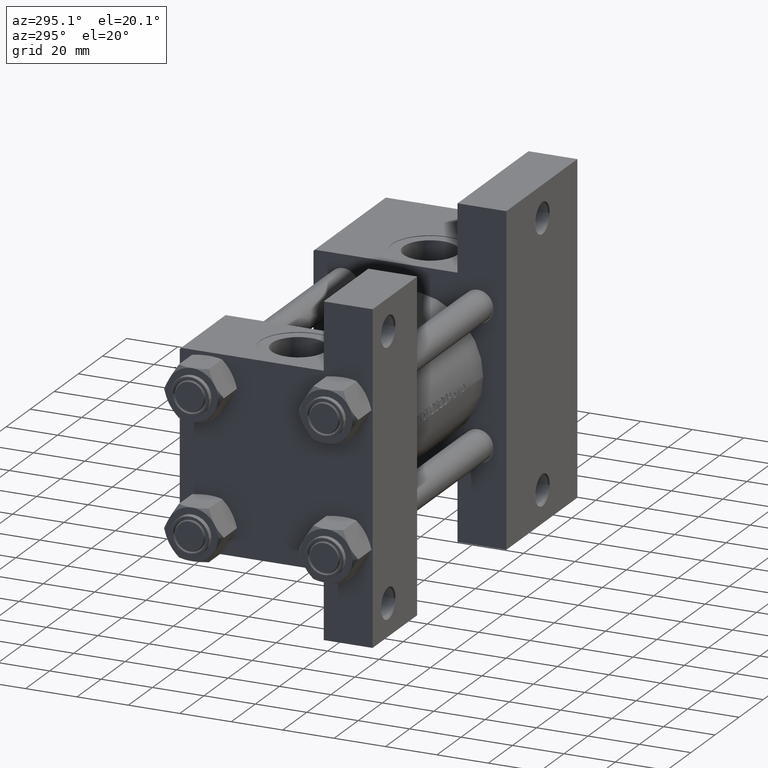
[diagram: clean part render]
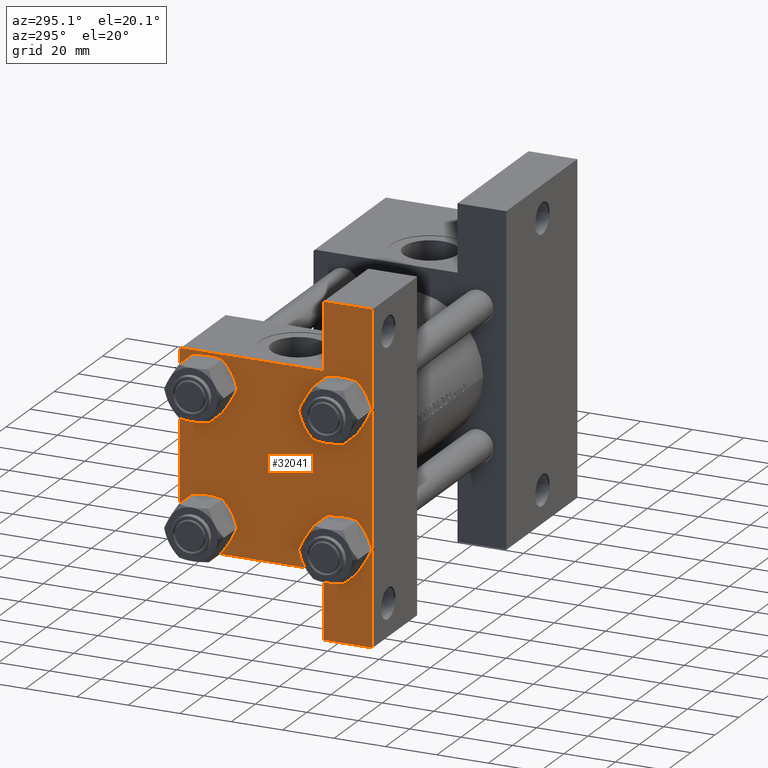
[diagram: same view with one face highlighted and labeled with its STEP entity id]
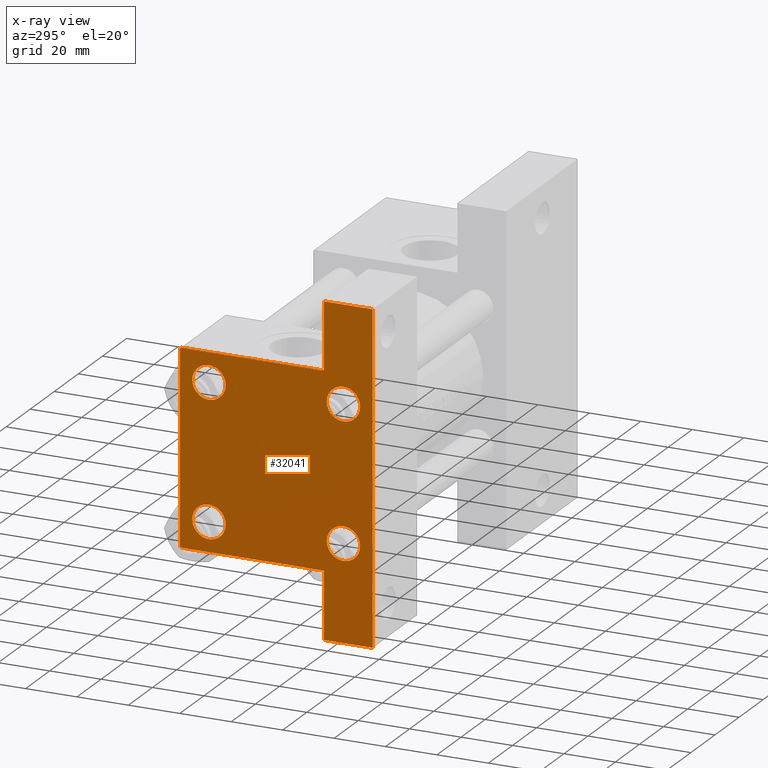
[diagram: x-ray of the same camera — body ghosted, the highlighted face saturated]
A machine part, auxiliary view. The second image highlights one B-rep face of the part: STEP entity #32041.
The next image is the same camera in x-ray: the body ghosted, the highlighted face saturated — about 0% of this face is hidden behind the body in this view.
In plain terms, the highlighted planar face has unit normal (-1, 0, -0).
Its self-contained STEP definition (entity closure, byte-faithful):
#770 = CARTESIAN_POINT ( 'NONE',  ( 0.000000000000000000, 37.49999999999999289, -18.49999999999999645 ) ) ;
#1362 = DIRECTION ( 'NONE',  ( -2.877097866686192789E-16, -1.000000000000000000, 0.000000000000000000 ) ) ;
#1862 = CARTESIAN_POINT ( 'NONE',  ( 0.000000000000000000, -37.50000000000000711, 37.49999999999999289 ) ) ;
#1998 = DIRECTION ( 'NONE',  ( 1.000000000000000000, -0.000000000000000000, 0.000000000000000000 ) ) ;
#3283 = ORIENTED_EDGE ( 'NONE', *, *, #33828, .F. ) ;
#3320 = DIRECTION ( 'NONE',  ( 0.000000000000000000, 0.000000000000000000, -1.000000000000000000 ) ) ;
#3736 = DIRECTION ( 'NONE',  ( 0.000000000000000000, 0.000000000000000000, 1.000000000000000000 ) ) ;
#3839 = DIRECTION ( 'NONE',  ( 0.000000000000000000, -1.000000000000000000, -9.251858538542972814E-17 ) ) ;
#4054 = VERTEX_POINT ( 'NONE', #770 ) ;
#4739 = VERTEX_POINT ( 'NONE', #43587 ) ;
#5235 = CARTESIAN_POINT ( 'NONE',  ( -7.145701223179004046E-16, -37.50000000000000711, -18.50000000000000355 ) ) ;
#6116 = CIRCLE ( 'NONE', #11660, 6.500000000000023093 ) ;
#6180 = CARTESIAN_POINT ( 'NONE',  ( 0.000000000000000000, -26.14999999999999147, -26.15000000000000924 ) ) ;
#6245 = DIRECTION ( 'NONE',  ( 0.000000000000000000, 0.000000000000000000, 1.000000000000000000 ) ) ;
#6592 = VERTEX_POINT ( 'NONE', #5235 ) ;
#6694 = CIRCLE ( 'NONE', #12312, 6.500000000000023093 ) ;
#6735 = AXIS2_PLACEMENT_3D ( 'NONE', #48580, #26161, #6245 ) ;
#6893 = DIRECTION ( 'NONE',  ( 0.000000000000000000, 0.000000000000000000, 1.000000000000000000 ) ) ;
#7155 = DIRECTION ( 'NONE',  ( 1.000000000000000000, -0.000000000000000000, 0.000000000000000000 ) ) ;
#7296 = LINE ( 'NONE', #15023, #44423 ) ;
#7646 = VECTOR ( 'NONE', #37503, 1000.000000000000000 ) ;
#7820 = ORIENTED_EDGE ( 'NONE', *, *, #26578, .F. ) ;
#8464 = DIRECTION ( 'NONE',  ( 0.000000000000000000, -1.000000000000000000, -9.251858538542971581E-17 ) ) ;
#9228 = EDGE_CURVE ( 'NONE', #4739, #21108, #40768, .T. ) ;
#9345 = DIRECTION ( 'NONE',  ( 0.000000000000000000, 9.251858538542971581E-17, -1.000000000000000000 ) ) ;
#9557 = CARTESIAN_POINT ( 'NONE',  ( 0.000000000000000000, 26.14999999999999858, 26.15000000000000213 ) ) ;
#9569 = CARTESIAN_POINT ( 'NONE',  ( 0.000000000000000000, 36.99999999999999289, 37.50000000000000000 ) ) ;
#9811 = AXIS2_PLACEMENT_3D ( 'NONE', #10732, #33627, #29906 ) ;
#10243 = PLANE ( 'NONE',  #9811 ) ;
#10460 = CARTESIAN_POINT ( 'NONE',  ( 1.595073532467135441E-14, 63.50000000000001421, 26.72167621838005047 ) ) ;
#10482 = FACE_BOUND ( 'NONE', #35468, .T. ) ;
#10576 = DIRECTION ( 'NONE',  ( 0.000000000000000000, 0.000000000000000000, 1.000000000000000000 ) ) ;
#10732 = CARTESIAN_POINT ( 'NONE',  ( 0.000000000000000000, 0.000000000000000000, 0.000000000000000000 ) ) ;
#10796 = AXIS2_PLACEMENT_3D ( 'NONE', #6180, #7155, #14137 ) ;
#10828 = CARTESIAN_POINT ( 'NONE',  ( 0.000000000000000000, -26.14999999999999147, 26.15000000000000924 ) ) ;
#10906 = ORIENTED_EDGE ( 'NONE', *, *, #25404, .F. ) ;
#11102 = EDGE_CURVE ( 'NONE', #45305, #42424, #39874, .T. ) ;
#11142 = CARTESIAN_POINT ( 'NONE',  ( 0.000000000000000000, -26.14999999999999147, -19.64999999999999503 ) ) ;
#11293 = ORIENTED_EDGE ( 'NONE', *, *, #23860, .T. ) ;
#11660 = AXIS2_PLACEMENT_3D ( 'NONE', #15761, #31468, #46405 ) ;
#12312 = AXIS2_PLACEMENT_3D ( 'NONE', #9557, #27760, #47418 ) ;
#12447 = LINE ( 'NONE', #42573, #31469 ) ;
#12568 = DIRECTION ( 'NONE',  ( -0.000000000000000000, 0.7071067811865474617, 0.7071067811865474617 ) ) ;
#12781 = ORIENTED_EDGE ( 'NONE', *, *, #14135, .T. ) ;
#12864 = EDGE_CURVE ( 'NONE', #17136, #24897, #6694, .T. ) ;
#13319 = CIRCLE ( 'NONE', #34006, 6.500000000000015987 ) ;
#13375 = CARTESIAN_POINT ( 'NONE',  ( 3.977209754999747208E-16, -63.49999999999998579, 26.72167621838007889 ) ) ;
#13724 = FACE_BOUND ( 'NONE', #25323, .T. ) ;
#14135 = EDGE_CURVE ( 'NONE', #34031, #41936, #28239, .T. ) ;
#14137 = DIRECTION ( 'NONE',  ( 0.000000000000000000, 0.000000000000000000, 1.000000000000000000 ) ) ;
#14158 = VERTEX_POINT ( 'NONE', #32656 ) ;
#14275 = CARTESIAN_POINT ( 'NONE',  ( 1.595073532467135441E-14, 63.50000000000000000, -18.50000000000000355 ) ) ;
#14366 = CARTESIAN_POINT ( 'NONE',  ( 0.000000000000000000, -26.14999999999999147, -26.15000000000000924 ) ) ;
#14699 = FACE_BOUND ( 'NONE', #48717, .T. ) ;
#14949 = CARTESIAN_POINT ( 'NONE',  ( 0.000000000000000000, 26.14999999999999858, 26.15000000000000213 ) ) ;
#14976 = VECTOR ( 'NONE', #37185, 1000.000000000000000 ) ;
#15023 = CARTESIAN_POINT ( 'NONE',  ( 0.000000000000000000, 37.49999999999999289, 37.50000000000000000 ) ) ;
#15535 = CIRCLE ( 'NONE', #36167, 6.500000000000023093 ) ;
#15602 = CARTESIAN_POINT ( 'NONE',  ( 0.000000000000000000, 26.14999999999999858, 32.65000000000002700 ) ) ;
#15761 = CARTESIAN_POINT ( 'NONE',  ( 0.000000000000000000, -26.14999999999999147, 26.15000000000000924 ) ) ;
#16144 = ORIENTED_EDGE ( 'NONE', *, *, #24275, .T. ) ;
#16805 = LINE ( 'NONE', #1862, #34529 ) ;
#17052 = VERTEX_POINT ( 'NONE', #11142 ) ;
#17136 = VERTEX_POINT ( 'NONE', #15602 ) ;
#17700 = FACE_OUTER_BOUND ( 'NONE', #18091, .T. ) ;
#18091 = EDGE_LOOP ( 'NONE', ( #3283, #42523, #30897, #31324, #33645, #10906, #39912, #30012, #48372, #7820 ) ) ;
#18530 = LINE ( 'NONE', #37973, #43543 ) ;
#18556 = CARTESIAN_POINT ( 'NONE',  ( 0.000000000000000000, -37.00000000000000711, 37.49999999999999289 ) ) ;
#19455 = CARTESIAN_POINT ( 'NONE',  ( 0.000000000000000000, 26.14999999999999858, 19.64999999999998437 ) ) ;
#19541 = EDGE_CURVE ( 'NONE', #46608, #47186, #12447, .T. ) ;
#19771 = EDGE_CURVE ( 'NONE', #17052, #42608, #21913, .T. ) ;
#20914 = DIRECTION ( 'NONE',  ( 0.000000000000000000, 0.000000000000000000, 1.000000000000000000 ) ) ;
#21108 = VERTEX_POINT ( 'NONE', #44679 ) ;
#21913 = CIRCLE ( 'NONE', #10796, 6.500000000000015987 ) ;
#22248 = EDGE_LOOP ( 'NONE', ( #27689, #16144 ) ) ;
#22275 = DIRECTION ( 'NONE',  ( 1.000000000000000000, -0.000000000000000000, 0.000000000000000000 ) ) ;
#22313 = CARTESIAN_POINT ( 'NONE',  ( 3.977209754999747208E-16, -63.50000000000000000, -18.50000000000000355 ) ) ;
#22604 = CARTESIAN_POINT ( 'NONE',  ( 0.000000000000000000, -26.14999999999999147, -32.65000000000002700 ) ) ;
#22962 = EDGE_CURVE ( 'NONE', #14158, #47186, #46692, .T. ) ;
#23717 = VECTOR ( 'NONE', #1362, 1000.000000000000000 ) ;
#23860 = EDGE_CURVE ( 'NONE', #41936, #34031, #13319, .T. ) ;
#24275 = EDGE_CURVE ( 'NONE', #42608, #17052, #46718, .T. ) ;
#24612 = EDGE_CURVE ( 'NONE', #42424, #27011, #18530, .T. ) ;
#24897 = VERTEX_POINT ( 'NONE', #19455 ) ;
#25305 = CARTESIAN_POINT ( 'NONE',  ( 0.000000000000000000, 37.24999999999999289, 37.24999999999999289 ) ) ;
#25323 = EDGE_LOOP ( 'NONE', ( #45771, #42436 ) ) ;
#25404 = EDGE_CURVE ( 'NONE', #45305, #4054, #32229, .T. ) ;
#25548 = LINE ( 'NONE', #25305, #46826 ) ;
#26123 = EDGE_CURVE ( 'NONE', #46608, #45989, #25548, .T. ) ;
#26161 = DIRECTION ( 'NONE',  ( 1.000000000000000000, -0.000000000000000000, 0.000000000000000000 ) ) ;
#26578 = EDGE_CURVE ( 'NONE', #6592, #31420, #30890, .T. ) ;
#27011 = VERTEX_POINT ( 'NONE', #43986 ) ;
#27137 = CARTESIAN_POINT ( 'NONE',  ( 0.000000000000000000, 26.14999999999999858, -32.65000000000001990 ) ) ;
#27397 = CARTESIAN_POINT ( 'NONE',  ( 0.000000000000000000, 37.49999999999999289, 37.00000000000000000 ) ) ;
#27689 = ORIENTED_EDGE ( 'NONE', *, *, #19771, .T. ) ;
#27760 = DIRECTION ( 'NONE',  ( 1.000000000000000000, -0.000000000000000000, 0.000000000000000000 ) ) ;
#28048 = EDGE_CURVE ( 'NONE', #45989, #4054, #7296, .T. ) ;
#28239 = CIRCLE ( 'NONE', #6735, 6.500000000000015987 ) ;
#28905 = VECTOR ( 'NONE', #29399, 1000.000000000000000 ) ;
#29090 = DIRECTION ( 'NONE',  ( 1.000000000000000000, -0.000000000000000000, 0.000000000000000000 ) ) ;
#29399 = DIRECTION ( 'NONE',  ( 0.000000000000000000, -1.734723475976806848E-16, -1.000000000000000000 ) ) ;
#29906 = DIRECTION ( 'NONE',  ( -0.000000000000000000, 0.000000000000000000, 1.000000000000000000 ) ) ;
#30012 = ORIENTED_EDGE ( 'NONE', *, *, #24612, .T. ) ;
#30728 = CARTESIAN_POINT ( 'NONE',  ( 0.000000000000000000, 26.14999999999999858, -19.64999999999998792 ) ) ;
#30890 = LINE ( 'NONE', #40919, #14976 ) ;
#30897 = ORIENTED_EDGE ( 'NONE', *, *, #19541, .F. ) ;
#30949 = CARTESIAN_POINT ( 'NONE',  ( 1.595073532467135441E-14, 63.50000000000000000, -37.50000000000002132 ) ) ;
#31324 = ORIENTED_EDGE ( 'NONE', *, *, #26123, .T. ) ;
#31420 = VERTEX_POINT ( 'NONE', #22313 ) ;
#31468 = DIRECTION ( 'NONE',  ( 1.000000000000000000, -0.000000000000000000, 0.000000000000000000 ) ) ;
#31469 = VECTOR ( 'NONE', #8464, 1000.000000000000000 ) ;
#32041 = ADVANCED_FACE ( 'NONE', ( #14699, #36641, #10482, #13724, #17700 ), #10243, .T. ) ;
#32229 = LINE ( 'NONE', #46935, #23717 ) ;
#32656 = CARTESIAN_POINT ( 'NONE',  ( 0.000000000000000000, -37.50000000000000711, 36.99999999999999289 ) ) ;
#33627 = DIRECTION ( 'NONE',  ( -1.000000000000000000, 0.000000000000000000, -0.000000000000000000 ) ) ;
#33645 = ORIENTED_EDGE ( 'NONE', *, *, #28048, .T. ) ;
#33828 = EDGE_CURVE ( 'NONE', #14158, #6592, #16805, .T. ) ;
#34006 = AXIS2_PLACEMENT_3D ( 'NONE', #35645, #1998, #20914 ) ;
#34031 = VERTEX_POINT ( 'NONE', #30728 ) ;
#34529 = VECTOR ( 'NONE', #9345, 1000.000000000000000 ) ;
#35468 = EDGE_LOOP ( 'NONE', ( #12781, #11293 ) ) ;
#35645 = CARTESIAN_POINT ( 'NONE',  ( 0.000000000000000000, 26.14999999999999858, -26.15000000000000213 ) ) ;
#36167 = AXIS2_PLACEMENT_3D ( 'NONE', #14949, #45580, #3736 ) ;
#36641 = FACE_BOUND ( 'NONE', #22248, .T. ) ;
#36752 = DIRECTION ( 'NONE',  ( 0.000000000000000000, 0.7071067811865474617, -0.7071067811865474617 ) ) ;
#37185 = DIRECTION ( 'NONE',  ( 4.278042683914906889E-17, -1.000000000000000000, 0.000000000000000000 ) ) ;
#37479 = ORIENTED_EDGE ( 'NONE', *, *, #9228, .T. ) ;
#37503 = DIRECTION ( 'NONE',  ( 0.000000000000000000, -1.734723475976806848E-16, -1.000000000000000000 ) ) ;
#37973 = CARTESIAN_POINT ( 'NONE',  ( 0.000000000000000000, 37.49999999999999289, -37.50000000000000000 ) ) ;
#38105 = EDGE_CURVE ( 'NONE', #24897, #17136, #15535, .T. ) ;
#39874 = LINE ( 'NONE', #10460, #28905 ) ;
#39912 = ORIENTED_EDGE ( 'NONE', *, *, #11102, .T. ) ;
#40768 = CIRCLE ( 'NONE', #44747, 6.500000000000023093 ) ;
#40919 = CARTESIAN_POINT ( 'NONE',  ( 3.977209754999744250E-16, -63.49999999999998579, -18.50000000000000355 ) ) ;
#41936 = VERTEX_POINT ( 'NONE', #27137 ) ;
#42424 = VERTEX_POINT ( 'NONE', #30949 ) ;
#42436 = ORIENTED_EDGE ( 'NONE', *, *, #38105, .T. ) ;
#42523 = ORIENTED_EDGE ( 'NONE', *, *, #22962, .T. ) ;
#42573 = CARTESIAN_POINT ( 'NONE',  ( 0.000000000000000000, 37.49999999999999289, 37.50000000000000000 ) ) ;
#42608 = VERTEX_POINT ( 'NONE', #22604 ) ;
#42918 = EDGE_CURVE ( 'NONE', #31420, #27011, #47494, .T. ) ;
#43180 = CARTESIAN_POINT ( 'NONE',  ( -0.000000000000000000, -37.25000000000000000, 37.25000000000000000 ) ) ;
#43543 = VECTOR ( 'NONE', #3839, 1000.000000000000000 ) ;
#43587 = CARTESIAN_POINT ( 'NONE',  ( 0.000000000000000000, -26.14999999999999147, 19.64999999999999147 ) ) ;
#43986 = CARTESIAN_POINT ( 'NONE',  ( 3.977209754999747208E-16, -63.50000000000000000, -37.49999999999999289 ) ) ;
#44132 = EDGE_CURVE ( 'NONE', #21108, #4739, #6116, .T. ) ;
#44423 = VECTOR ( 'NONE', #3320, 1000.000000000000000 ) ;
#44679 = CARTESIAN_POINT ( 'NONE',  ( 0.000000000000000000, -26.14999999999999147, 32.65000000000003411 ) ) ;
#44747 = AXIS2_PLACEMENT_3D ( 'NONE', #10828, #22275, #10576 ) ;
#45305 = VERTEX_POINT ( 'NONE', #14275 ) ;
#45580 = DIRECTION ( 'NONE',  ( 1.000000000000000000, -0.000000000000000000, 0.000000000000000000 ) ) ;
#45594 = ORIENTED_EDGE ( 'NONE', *, *, #44132, .T. ) ;
#45771 = ORIENTED_EDGE ( 'NONE', *, *, #12864, .T. ) ;
#45926 = AXIS2_PLACEMENT_3D ( 'NONE', #14366, #29090, #6893 ) ;
#45989 = VERTEX_POINT ( 'NONE', #27397 ) ;
#46405 = DIRECTION ( 'NONE',  ( 0.000000000000000000, 0.000000000000000000, 1.000000000000000000 ) ) ;
#46608 = VERTEX_POINT ( 'NONE', #9569 ) ;
#46692 = LINE ( 'NONE', #43180, #46693 ) ;
#46693 = VECTOR ( 'NONE', #12568, 1000.000000000000114 ) ;
#46718 = CIRCLE ( 'NONE', #45926, 6.500000000000015987 ) ;
#46826 = VECTOR ( 'NONE', #36752, 1000.000000000000114 ) ;
#46935 = CARTESIAN_POINT ( 'NONE',  ( 1.595073532467135757E-14, 63.50000000000001421, -18.50000000000000355 ) ) ;
#47186 = VERTEX_POINT ( 'NONE', #18556 ) ;
#47418 = DIRECTION ( 'NONE',  ( 0.000000000000000000, 0.000000000000000000, 1.000000000000000000 ) ) ;
#47494 = LINE ( 'NONE', #13375, #7646 ) ;
#48372 = ORIENTED_EDGE ( 'NONE', *, *, #42918, .F. ) ;
#48580 = CARTESIAN_POINT ( 'NONE',  ( 0.000000000000000000, 26.14999999999999858, -26.15000000000000213 ) ) ;
#48717 = EDGE_LOOP ( 'NONE', ( #45594, #37479 ) ) ;